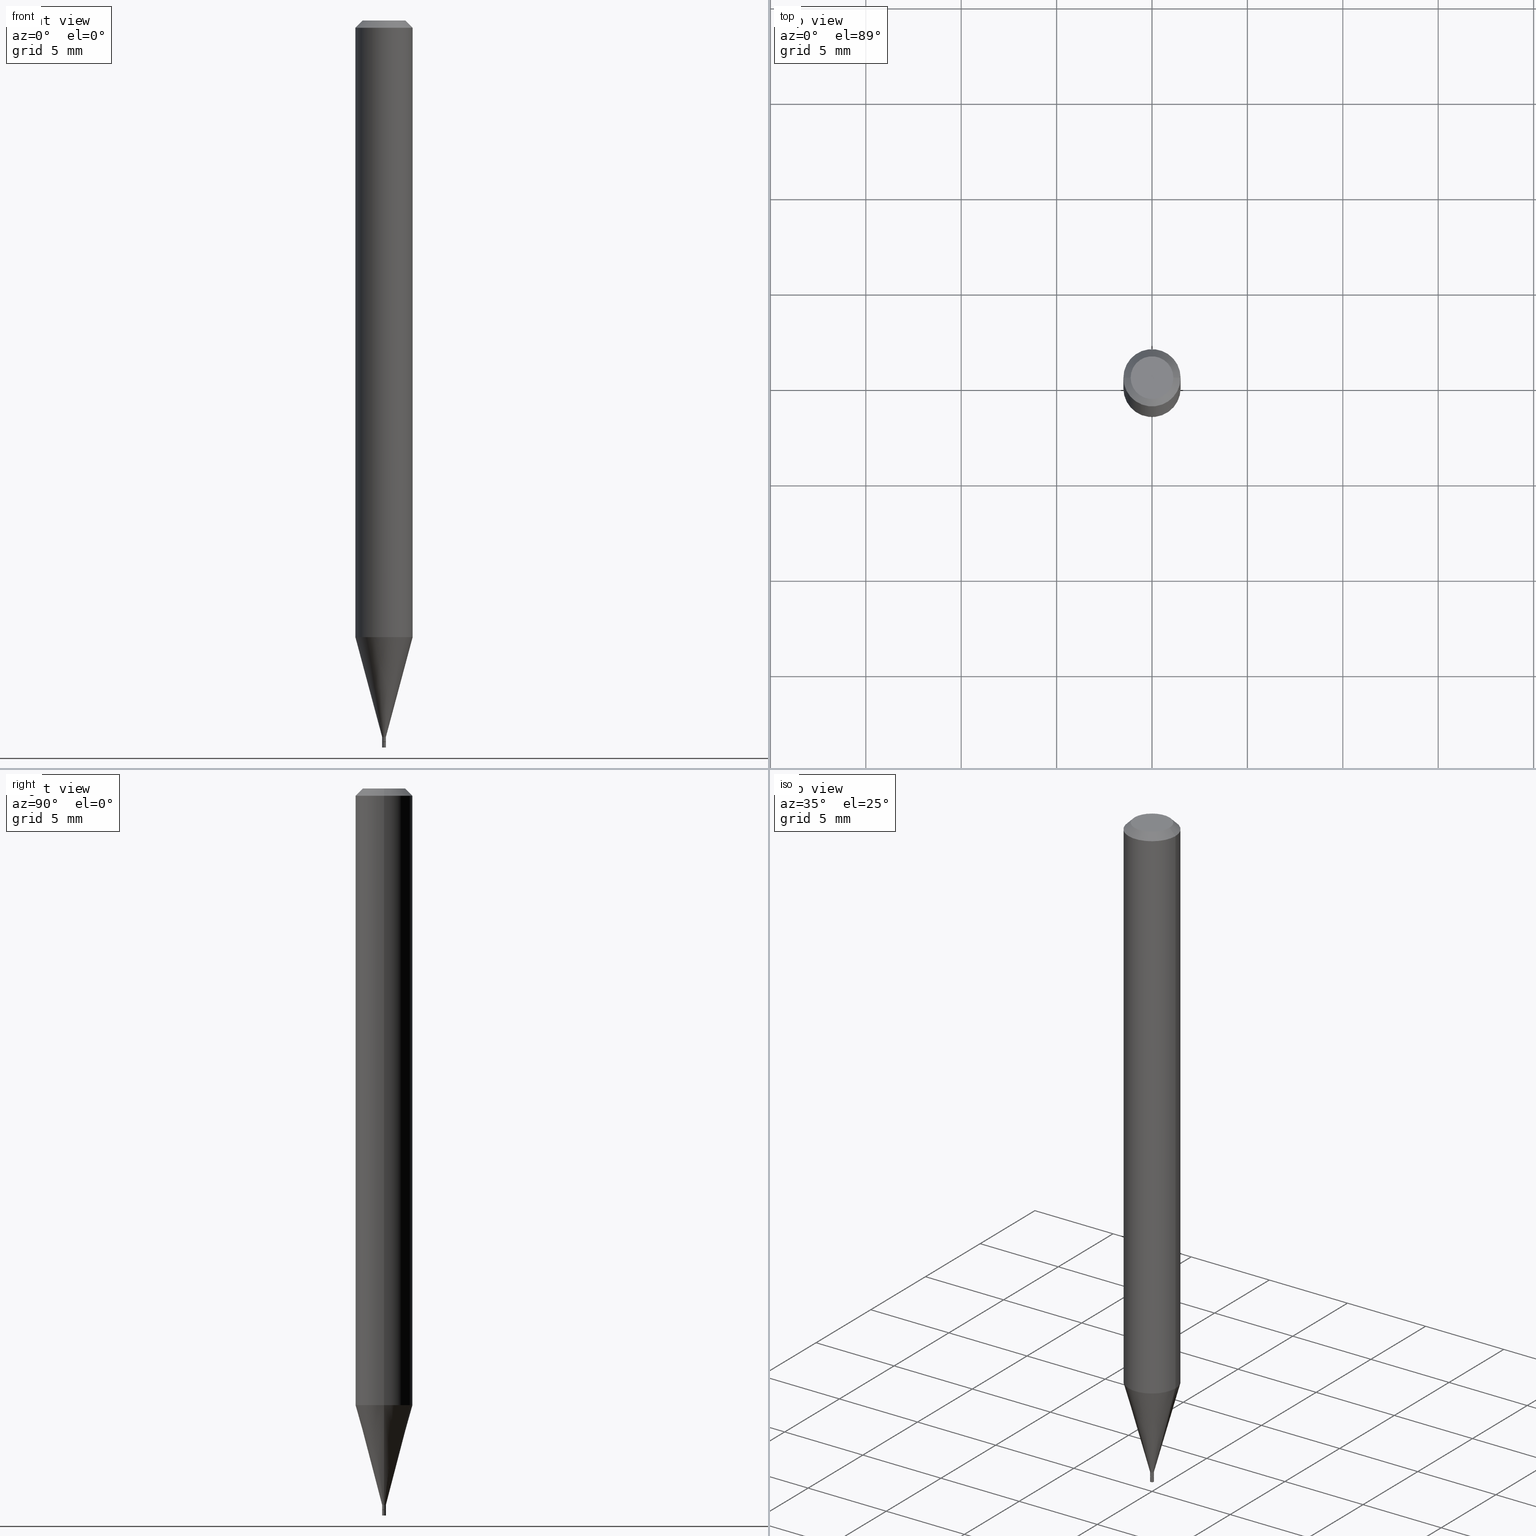
[diagram: canonical four-view strip — front | top / right | iso, engineering-drawing reading convention]
A machine part, canonical four-view strip (front | top / right | iso — engineering-drawing reading convention). The complete STEP part file that produces these views, byte-faithful:
ISO-10303-21;
HEADER;
FILE_DESCRIPTION (( 'STEP AP203' ),
    '1' );
FILE_NAME ('02801.STEP',
    '2024-03-18T21:39:24',
    ( '' ),
    ( '' ),
    'SwSTEP 2.0',
    'SolidWorks 2023',
    '' );
FILE_SCHEMA (( 'CONFIG_CONTROL_DESIGN' ));
ENDSEC;

DATA;
#1 = ORIENTED_EDGE ( 'NONE', *, *, #172, .F. ) ;
#2 = CARTESIAN_POINT ( 'NONE',  ( 3.639346677364720273E-29, -5.196022528466369115E-15, -1.488199999999999967 ) ) ;
#3 = EDGE_CURVE ( 'NONE', #75, #7, #95, .T. ) ;
#4 = ORIENTED_EDGE ( 'NONE', *, *, #378, .F. ) ;
#5 = DIRECTION ( 'NONE',  ( 1.000000000000000000, -6.982962677686375573E-15, 0.000000000000000000 ) ) ;
#6 = LOCAL_TIME ( 17, 39, 24.00000000000000000, #386 ) ;
#7 = VERTEX_POINT ( 'NONE', #382 ) ;
#8 = CARTESIAN_POINT ( 'NONE',  ( 2.758270257689715332E-17, 0.003949999999994805756, -1.488199999999999967 ) ) ;
#9 =( CONVERSION_BASED_UNIT ( 'INCH', #265 ) LENGTH_UNIT ( ) NAMED_UNIT ( #381 ) );
#10 = CALENDAR_DATE ( 2024, 18, 3 ) ;
#11 = CC_DESIGN_DATE_AND_TIME_ASSIGNMENT ( #424, #416, ( #296 ) ) ;
#12 = ORIENTED_EDGE ( 'NONE', *, *, #421, .T. ) ;
#13 =( NAMED_UNIT ( * ) SI_UNIT ( $, .STERADIAN. ) SOLID_ANGLE_UNIT ( ) );
#14 = SECURITY_CLASSIFICATION ( '', '', #310 ) ;
#15 = ORIENTED_EDGE ( 'NONE', *, *, #456, .F. ) ;
#16 = DIRECTION ( 'NONE',  ( 1.000000000000000000, -6.982962677686268288E-15, 4.876176775795935793E-29 ) ) ;
#17 = EDGE_LOOP ( 'NONE', ( #404, #184, #116, #374 ) ) ;
#18 = CARTESIAN_POINT ( 'NONE',  ( 3.639346677364720273E-29, -5.196022528466369115E-15, -1.488199999999999967 ) ) ;
#19 = ORIENTED_EDGE ( 'NONE', *, *, #459, .T. ) ;
#20 = DIRECTION ( 'NONE',  ( 1.000000000000000000, -6.982962677686375573E-15, 0.000000000000000000 ) ) ;
#21 = CLOSED_SHELL ( 'NONE', ( #430, #347, #360, #329, #181, #303, #117, #107, #452, #60, #241, #28 ) ) ;
#22 = AXIS2_PLACEMENT_3D ( 'NONE', #8, #41, #115 ) ;
#23 = ORIENTED_EDGE ( 'NONE', *, *, #250, .F. ) ;
#24 = ORIENTED_EDGE ( 'NONE', *, *, #459, .F. ) ;
#25 = DIRECTION ( 'NONE',  ( -2.445468806185136597E-29, 3.491481338843145583E-15, 1.000000000000000000 ) ) ;
#26 = MANIFOLD_SOLID_BREP ( 'Body-Move/Copy2[1]', #396 ) ;
#27 = CARTESIAN_POINT ( 'NONE',  ( 3.576687321579069994E-29, -5.368277968210015545E-15, -1.500000000000000222 ) ) ;
#28 = ADVANCED_FACE ( 'NONE', ( #29 ), #254, .T. ) ;
#29 = FACE_OUTER_BOUND ( 'NONE', #122, .T. ) ;
#30 = AXIS2_PLACEMENT_3D ( 'NONE', #443, #440, #5 ) ;
#31 = DIRECTION ( 'NONE',  ( 1.000000000000000000, -6.982962677686265922E-15, 4.876176775795935793E-29 ) ) ;
#32 = CARTESIAN_POINT ( 'NONE',  ( 3.614402895541632280E-29, -5.160409418810169653E-15, -1.478000000000000203 ) ) ;
#33 = VECTOR ( 'NONE', #435, 39.37007874015748854 ) ;
#34 = LINE ( 'NONE', #354, #114 ) ;
#35 =( GEOMETRIC_REPRESENTATION_CONTEXT ( 3 ) GLOBAL_UNCERTAINTY_ASSIGNED_CONTEXT ( ( #135 ) ) GLOBAL_UNIT_ASSIGNED_CONTEXT ( ( #9, #77, #13 ) ) REPRESENTATION_CONTEXT ( 'NONE', 'WORKASPACE' ) );
#36 = CARTESIAN_POINT ( 'NONE',  ( -0.003950000000000001253, -5.188555830303019624E-15, -1.488199999999999967 ) ) ;
#37 = EDGE_CURVE ( 'NONE', #272, #271, #247, .T. ) ;
#38 = ORIENTED_EDGE ( 'NONE', *, *, #456, .T. ) ;
#39 = ORIENTED_EDGE ( 'NONE', *, *, #185, .F. ) ;
#40 = CONICAL_SURFACE ( 'NONE', #446, 0.003449999999999999942, 0.7853981633974733700 ) ;
#41 = DIRECTION ( 'NONE',  ( 2.438088387897960049E-29, -3.491481338843145188E-15, -1.000000000000000000 ) ) ;
#42 = APPROVAL_ROLE ( '' ) ;
#43 = CYLINDRICAL_SURFACE ( 'NONE', #183, 0.003950000000000001253 ) ;
#44 = DIRECTION ( 'NONE',  ( -0.7071067811865652253, 7.493145998870417269E-15, 0.7071067811865298092 ) ) ;
#45 = LINE ( 'NONE', #98, #127 ) ;
#46 = CIRCLE ( 'NONE', #61, 0.003950000000000001253 ) ;
#47 = CARTESIAN_POINT ( 'NONE',  ( 0.003949999999999924925, -5.187992121387030198E-15, -1.478000000000000203 ) ) ;
#48 = EDGE_LOOP ( 'NONE', ( #81, #364 ) ) ;
#49 = LINE ( 'NONE', #240, #388 ) ;
#50 = DIRECTION ( 'NONE',  ( 2.438088387897960049E-29, -3.491481338843145188E-15, -1.000000000000000000 ) ) ;
#51 = EDGE_LOOP ( 'NONE', ( #400, #264, #438, #23 ) ) ;
#52 = CARTESIAN_POINT ( 'NONE',  ( -0.003949999999999924058, -5.166210349734423589E-15, -1.487700000000000022 ) ) ;
#53 = ORIENTED_EDGE ( 'NONE', *, *, #427, .T. ) ;
#54 = CARTESIAN_POINT ( 'NONE',  ( -0.05904999999999999832, -4.022859678505539415E-15, -1.272364000502955284 ) ) ;
#55 = AXIS2_PLACEMENT_3D ( 'NONE', #105, #359, #102 ) ;
#56 = EDGE_CURVE ( 'NONE', #90, #259, #106, .T. ) ;
#57 = CC_DESIGN_PERSON_AND_ORGANIZATION_ASSIGNMENT ( #369, #244, ( #296 ) ) ;
#58 = FACE_OUTER_BOUND ( 'NONE', #48, .T. ) ;
#59 = DIRECTION ( 'NONE',  ( -2.445468806185136597E-29, 3.491481338843145583E-15, 1.000000000000000000 ) ) ;
#60 = ADVANCED_FACE ( 'NONE', ( #58 ), #352, .F. ) ;
#61 = AXIS2_PLACEMENT_3D ( 'NONE', #379, #198, #93 ) ;
#62 = DIRECTION ( 'NONE',  ( -2.445468806185136597E-29, 3.491481338843145583E-15, 1.000000000000000000 ) ) ;
#63 = DIRECTION ( 'NONE',  ( -2.445468806185136597E-29, 3.491481338843145583E-15, 1.000000000000000000 ) ) ;
#64 = DATE_AND_TIME ( #101, #197 ) ;
#65 = CARTESIAN_POINT ( 'NONE',  ( 3.111526473342906720E-29, -4.442435163971879697E-15, -1.272364000502955284 ) ) ;
#66 = CARTESIAN_POINT ( 'NONE',  ( 0.000000000000000000, 0.000000000000000000, 0.000000000000000000 ) ) ;
#67 = CONICAL_SURFACE ( 'NONE', #398, 0.05904999999999999832, 0.7853981633974284060 ) ;
#68 = EDGE_CURVE ( 'NONE', #220, #90, #226, .T. ) ;
#69 = DIRECTION ( 'NONE',  ( 1.000000000000000000, -6.982962677686266711E-15, 4.876176775795935232E-29 ) ) ;
#70 = PRODUCT_DEFINITION_SHAPE ( 'NONE', 'NONE',  #296 ) ;
#71 = VERTEX_POINT ( 'NONE', #283 ) ;
#72 = VECTOR ( 'NONE', #108, 39.37007874015748854 ) ;
#73 = CARTESIAN_POINT ( 'NONE',  ( 0.000000000000000000, 0.000000000000000000, 0.000000000000000000 ) ) ;
#74 = AXIS2_PLACEMENT_3D ( 'NONE', #2, #147, #301 ) ;
#75 = VERTEX_POINT ( 'NONE', #318 ) ;
#76 = FACE_OUTER_BOUND ( 'NONE', #79, .T. ) ;
#77 =( NAMED_UNIT ( * ) PLANE_ANGLE_UNIT ( ) SI_UNIT ( $, .RADIAN. ) );
#78 = APPROVAL_DATE_TIME ( #144, #405 ) ;
#79 = EDGE_LOOP ( 'NONE', ( #24, #233, #193, #348 ) ) ;
#80 = EDGE_LOOP ( 'NONE', ( #343, #297, #137, #227 ) ) ;
#81 = ORIENTED_EDGE ( 'NONE', *, *, #83, .F. ) ;
#82 = CARTESIAN_POINT ( 'NONE',  ( 0.003949999999999924058, -5.221859490373808156E-15, -1.487700000000000022 ) ) ;
#83 = EDGE_CURVE ( 'NONE', #182, #300, #157, .T. ) ;
#84 = DIRECTION ( 'NONE',  ( 1.000000000000000000, -6.982962677686379518E-15, 0.000000000000000000 ) ) ;
#85 = DIRECTION ( 'NONE',  ( 1.000000000000000000, 0.000000000000000000, 0.000000000000000000 ) ) ;
#86 = ORIENTED_EDGE ( 'NONE', *, *, #129, .T. ) ;
#87 = CARTESIAN_POINT ( 'NONE',  ( -0.003950000000000001253, 2.806643806252396625E-17, -1.942979360650688713E-31 ) ) ;
#88 = DIRECTION ( 'NONE',  ( 0.000000000000000000, 0.000000000000000000, 1.000000000000000000 ) ) ;
#89 = ORIENTED_EDGE ( 'NONE', *, *, #56, .F. ) ;
#90 = VERTEX_POINT ( 'NONE', #457 ) ;
#91 = PERSON_AND_ORGANIZATION ( #266, #165 ) ;
#92 = DATE_TIME_ROLE ( 'classification_date' ) ;
#93 = DIRECTION ( 'NONE',  ( 1.000000000000000000, -6.982962677686244622E-15, 0.000000000000000000 ) ) ;
#94 = APPROVAL ( #453, 'UNSPECIFIED' ) ;
#95 = CIRCLE ( 'NONE', #319, 0.003950000000000001253 ) ;
#96 = AXIS2_PLACEMENT_3D ( 'NONE', #143, #224, #331 ) ;
#97 = APPROVAL_DATE_TIME ( #211, #94 ) ;
#98 = CARTESIAN_POINT ( 'NONE',  ( 0.003949999999999924925, -2.758270257686022785E-17, 1.926089826439357875E-31 ) ) ;
#99 = PERSON_AND_ORGANIZATION ( #266, #165 ) ;
#100 = DIRECTION ( 'NONE',  ( 1.000000000000000000, -6.982962677686379518E-15, 0.000000000000000000 ) ) ;
#101 = CALENDAR_DATE ( 2024, 18, 3 ) ;
#102 = DIRECTION ( 'NONE',  ( 1.000000000000000000, -6.982962677686381095E-15, 0.000000000000000000 ) ) ;
#103 = CARTESIAN_POINT ( 'NONE',  ( -0.003949999999999924925, -5.132342980747646420E-15, -1.478000000000000203 ) ) ;
#104 = VECTOR ( 'NONE', #410, 39.37007874015748143 ) ;
#105 = CARTESIAN_POINT ( 'NONE',  ( 3.638123942961628033E-29, -5.194276787796947611E-15, -1.487700000000000022 ) ) ;
#106 = LINE ( 'NONE', #134, #72 ) ;
#107 = ADVANCED_FACE ( 'NONE', ( #458 ), #342, .T. ) ;
#108 = DIRECTION ( 'NONE',  ( 0.7071067811865333619, -7.319954787623207136E-15, -0.7071067811865614505 ) ) ;
#109 = AXIS2_PLACEMENT_3D ( 'NONE', #32, #203, #100 ) ;
#110 = EDGE_CURVE ( 'NONE', #71, #436, #174, .T. ) ;
#111 = ORIENTED_EDGE ( 'NONE', *, *, #56, .T. ) ;
#112 = CARTESIAN_POINT ( 'NONE',  ( -0.05904999999999999832, 3.599717260347268549E-16, -0.01499999999999999944 ) ) ;
#113 = ORIENTED_EDGE ( 'NONE', *, *, #290, .F. ) ;
#114 = VECTOR ( 'NONE', #321, 39.37007874015748143 ) ;
#115 = DIRECTION ( 'NONE',  ( -1.000000000000000000, 6.982962677686265922E-15, -4.876176775795935793E-29 ) ) ;
#116 = ORIENTED_EDGE ( 'NONE', *, *, #403, .F. ) ;
#117 = ADVANCED_FACE ( 'NONE', ( #128 ), #351, .T. ) ;
#118 = ORIENTED_EDGE ( 'NONE', *, *, #204, .F. ) ;
#119 = FACE_OUTER_BOUND ( 'NONE', #222, .T. ) ;
#120 = CC_DESIGN_PERSON_AND_ORGANIZATION_ASSIGNMENT ( #450, #314, ( #417 ) ) ;
#121 = AXIS2_PLACEMENT_3D ( 'NONE', #345, #25, #418 ) ;
#122 = EDGE_LOOP ( 'NONE', ( #39, #399, #125, #189 ) ) ;
#123 = EDGE_LOOP ( 'NONE', ( #366, #19, #216, #141 ) ) ;
#124 = LINE ( 'NONE', #311, #344 ) ;
#125 = ORIENTED_EDGE ( 'NONE', *, *, #336, .T. ) ;
#126 = CARTESIAN_POINT ( 'NONE',  ( 3.668203209277704895E-29, -5.237222008264718177E-15, -1.500000000000000222 ) ) ;
#127 = VECTOR ( 'NONE', #341, 39.37007874015748143 ) ;
#128 = FACE_OUTER_BOUND ( 'NONE', #218, .T. ) ;
#129 = EDGE_CURVE ( 'NONE', #272, #259, #431, .T. ) ;
#130 = PERSON_AND_ORGANIZATION_ROLE ( 'design_supplier' ) ;
#131 = DIRECTION ( 'NONE',  ( 1.000000000000000000, -6.982962677686244622E-15, 0.000000000000000000 ) ) ;
#132 = AXIS2_PLACEMENT_3D ( 'NONE', #394, #425, #282 ) ;
#133 = CONICAL_SURFACE ( 'NONE', #401, 0.003949999999999924925, 0.2617993877991500740 ) ;
#134 = CARTESIAN_POINT ( 'NONE',  ( 0.05904999999999999832, -4.574846268510561447E-16, -0.01499999999999999944 ) ) ;
#135 = UNCERTAINTY_MEASURE_WITH_UNIT (LENGTH_MEASURE( 1.000000000000000082E-05 ), #9, 'distance_accuracy_value', 'NONE');
#136 = CARTESIAN_POINT ( 'NONE',  ( 0.05904999999999999832, -4.123439461173740327E-16, 2.879382386107500220E-30 ) ) ;
#137 = ORIENTED_EDGE ( 'NONE', *, *, #427, .F. ) ;
#138 = DIRECTION ( 'NONE',  ( -2.445468806185136597E-29, 3.491481338843145583E-15, 1.000000000000000000 ) ) ;
#139 = CIRCLE ( 'NONE', #263, 0.05904999999999999832 ) ;
#140 = FACE_OUTER_BOUND ( 'NONE', #295, .T. ) ;
#141 = ORIENTED_EDGE ( 'NONE', *, *, #346, .F. ) ;
#142 = APPLICATION_CONTEXT ( 'configuration controlled 3d designs of mechanical parts and assemblies' ) ;
#143 = CARTESIAN_POINT ( 'NONE',  ( -1.468669197094138970E-44, 2.096870375781732313E-30, 6.005675449139022051E-16 ) ) ;
#144 = DATE_AND_TIME ( #10, #228 ) ;
#145 = ORIENTED_EDGE ( 'NONE', *, *, #323, .F. ) ;
#146 = AXIS2_PLACEMENT_3D ( 'NONE', #73, #88, #85 ) ;
#147 = DIRECTION ( 'NONE',  ( -2.445468806185136597E-29, 3.491481338843145583E-15, 1.000000000000000000 ) ) ;
#148 = ADVANCED_FACE ( 'NONE', ( #281 ), #422, .T. ) ;
#149 = DIRECTION ( 'NONE',  ( 1.000000000000000000, -6.982962677686381095E-15, 0.000000000000000000 ) ) ;
#150 = DIRECTION ( 'NONE',  ( 1.000000000000000000, -6.982962677686244622E-15, 0.000000000000000000 ) ) ;
#151 = DIRECTION ( 'NONE',  ( 1.000000000000000000, -6.982962677686266711E-15, 0.000000000000000000 ) ) ;
#152 = ORIENTED_EDGE ( 'NONE', *, *, #338, .F. ) ;
#153 =( LENGTH_UNIT ( ) NAMED_UNIT ( * ) SI_UNIT ( $, .METRE. ) );
#154 = PERSON_AND_ORGANIZATION_ROLE ( 'classification_officer' ) ;
#155 = EDGE_LOOP ( 'NONE', ( #15, #111, #53, #118 ) ) ;
#156 = CARTESIAN_POINT ( 'NONE',  ( -0.003449999999999999942, -5.168859576908534791E-15, -1.488199999999999967 ) ) ;
#157 = CIRCLE ( 'NONE', #238, 0.003449999999999999942 ) ;
#158 = PERSON_AND_ORGANIZATION ( #266, #165 ) ;
#159 = ORIENTED_EDGE ( 'NONE', *, *, #384, .T. ) ;
#160 = DIRECTION ( 'NONE',  ( -2.445468806185136597E-29, 3.491481338843145583E-15, 1.000000000000000000 ) ) ;
#161 = APPROVAL_ROLE ( '' ) ;
#162 = PLANE ( 'NONE',  #292 ) ;
#163 = DIRECTION ( 'NONE',  ( -2.445468806185136597E-29, 3.491481338843145583E-15, 1.000000000000000000 ) ) ;
#164 = CIRCLE ( 'NONE', #30, 0.003449999999999999942 ) ;
#165 = ORGANIZATION ( 'UNSPECIFIED', 'UNSPECIFIED', '' ) ;
#166 = VECTOR ( 'NONE', #269, 39.37007874015747433 ) ;
#167 = EDGE_CURVE ( 'NONE', #304, #324, #461, .T. ) ;
#168 = CARTESIAN_POINT ( 'NONE',  ( -1.468669197094138970E-44, 2.096870375781732313E-30, 6.005675449139022051E-16 ) ) ;
#169 = APPROVAL ( #460, 'UNSPECIFIED' ) ;
#170 = CARTESIAN_POINT ( 'NONE',  ( 0.003449999999999999942, -5.220113749704386653E-15, -1.488199999999999967 ) ) ;
#171 = DIRECTION ( 'NONE',  ( 1.000000000000000000, -6.982962677686273021E-15, 0.000000000000000000 ) ) ;
#172 = EDGE_CURVE ( 'NONE', #7, #71, #34, .T. ) ;
#173 = CC_DESIGN_SECURITY_CLASSIFICATION ( #14, ( #417 ) ) ;
#174 = CIRCLE ( 'NONE', #190, 0.003950000000000001253 ) ;
#175 = MANIFOLD_SOLID_BREP ( 'Body-Move/Copy2[2]', #21 ) ;
#176 = CC_DESIGN_PERSON_AND_ORGANIZATION_ASSIGNMENT ( #91, #267, ( #294 ) ) ;
#177 = CIRCLE ( 'NONE', #441, 0.003950000000000001253 ) ;
#178 = DIRECTION ( 'NONE',  ( -2.445468806185136597E-29, 3.491481338843145583E-15, 1.000000000000000000 ) ) ;
#179 = DIRECTION ( 'NONE',  ( 1.000000000000000000, -6.982962677686266711E-15, 0.000000000000000000 ) ) ;
#180 = ORIENTED_EDGE ( 'NONE', *, *, #110, .T. ) ;
#181 = ADVANCED_FACE ( 'NONE', ( #255 ), #298, .T. ) ;
#182 = VERTEX_POINT ( 'NONE', #170 ) ;
#183 = AXIS2_PLACEMENT_3D ( 'NONE', #325, #138, #16 ) ;
#184 = ORIENTED_EDGE ( 'NONE', *, *, #185, .T. ) ;
#185 = EDGE_CURVE ( 'NONE', #324, #406, #391, .T. ) ;
#186 = APPLICATION_PROTOCOL_DEFINITION ( 'international standard', 'config_control_design', 1994, #368 ) ;
#187 = CC_DESIGN_PERSON_AND_ORGANIZATION_ASSIGNMENT ( #289, #154, ( #14 ) ) ;
#188 = ORIENTED_EDGE ( 'NONE', *, *, #323, .T. ) ;
#189 = ORIENTED_EDGE ( 'NONE', *, *, #421, .F. ) ;
#190 = AXIS2_PLACEMENT_3D ( 'NONE', #312, #246, #455 ) ;
#191 = AXIS2_PLACEMENT_3D ( 'NONE', #231, #451, #392 ) ;
#192 = DIRECTION ( 'NONE',  ( 0.7071067811865652253, -2.468850131082442443E-15, 0.7071067811865298092 ) ) ;
#193 = ORIENTED_EDGE ( 'NONE', *, *, #346, .T. ) ;
#194 = DIRECTION ( 'NONE',  ( -2.445468806185136597E-29, 3.491481338843145583E-15, 1.000000000000000000 ) ) ;
#195 = DIRECTION ( 'NONE',  ( -2.445468806185136597E-29, 3.491481338843145583E-15, 1.000000000000000000 ) ) ;
#196 = APPLICATION_PROTOCOL_DEFINITION ( 'international standard', 'config_control_design', 1994, #142 ) ;
#197 = LOCAL_TIME ( 17, 39, 24.00000000000000000, #251 ) ;
#198 = DIRECTION ( 'NONE',  ( -2.445468806185136597E-29, 3.491481338843145583E-15, 1.000000000000000000 ) ) ;
#199 = AXIS2_PLACEMENT_3D ( 'NONE', #213, #178, #252 ) ;
#200 = CIRCLE ( 'NONE', #249, 0.05904999999999999832 ) ;
#201 = CALENDAR_DATE ( 2024, 18, 3 ) ;
#202 = DIRECTION ( 'NONE',  ( -2.445468806185136597E-29, 3.491481338843145583E-15, 1.000000000000000000 ) ) ;
#203 = DIRECTION ( 'NONE',  ( -2.445468806185136597E-29, 3.491481338843145583E-15, 1.000000000000000000 ) ) ;
#204 = EDGE_CURVE ( 'NONE', #220, #448, #212, .T. ) ;
#205 = DATE_AND_TIME ( #201, #217 ) ;
#206 = EDGE_CURVE ( 'NONE', #300, #182, #164, .T. ) ;
#207 = DIRECTION ( 'NONE',  ( 1.000000000000000000, -6.982962677686266711E-15, 4.876176775795935232E-29 ) ) ;
#208 = CC_DESIGN_APPROVAL ( #405, ( #296 ) ) ;
#209 = PERSON_AND_ORGANIZATION ( #266, #165 ) ;
#210 = DIRECTION ( 'NONE',  ( 1.000000000000000000, -6.982962677686268288E-15, 4.876176775795935793E-29 ) ) ;
#211 = DATE_AND_TIME ( #356, #6 ) ;
#212 = LINE ( 'NONE', #112, #33 ) ;
#213 = CARTESIAN_POINT ( 'NONE',  ( 0.000000000000000000, 0.000000000000000000, 0.000000000000000000 ) ) ;
#214 = CC_DESIGN_APPROVAL ( #169, ( #417 ) ) ;
#215 = ADVANCED_FACE ( 'NONE', ( #140 ), #293, .F. ) ;
#216 = ORIENTED_EDGE ( 'NONE', *, *, #167, .F. ) ;
#217 = LOCAL_TIME ( 17, 39, 24.00000000000000000, #390 ) ;
#218 = EDGE_LOOP ( 'NONE', ( #113, #159, #86, #4 ) ) ;
#219 = DIRECTION ( 'NONE',  ( -2.445468806185136597E-29, 3.491481338843145583E-15, 1.000000000000000000 ) ) ;
#220 = VERTEX_POINT ( 'NONE', #402 ) ;
#221 = DIRECTION ( 'NONE',  ( 0.2588190451025213501, 1.565188264969621968E-15, 0.9659258262890682012 ) ) ;
#222 = EDGE_LOOP ( 'NONE', ( #412, #12, #234, #447 ) ) ;
#223 = CARTESIAN_POINT ( 'NONE',  ( 0.003949999999999924925, -5.187992121387030198E-15, -1.478000000000000203 ) ) ;
#224 = DIRECTION ( 'NONE',  ( -2.445468806185136597E-29, 3.491481338843145583E-15, 1.000000000000000000 ) ) ;
#225 = DIRECTION ( 'NONE',  ( -2.445468806185136597E-29, 3.491481338843145583E-15, 1.000000000000000000 ) ) ;
#226 = CIRCLE ( 'NONE', #433, 0.04404999999999999888 ) ;
#227 = ORIENTED_EDGE ( 'NONE', *, *, #129, .F. ) ;
#228 = LOCAL_TIME ( 17, 39, 24.00000000000000000, #333 ) ;
#229 = FACE_OUTER_BOUND ( 'NONE', #80, .T. ) ;
#230 = CARTESIAN_POINT ( 'NONE',  ( 3.075995059520799729E-16, 0.04404999999999999888, 1.464840194809105491E-16 ) ) ;
#231 = CARTESIAN_POINT ( 'NONE',  ( 3.614402895541632280E-29, -5.160409418810169653E-15, -1.478000000000000203 ) ) ;
#232 = ORIENTED_EDGE ( 'NONE', *, *, #338, .T. ) ;
#233 = ORIENTED_EDGE ( 'NONE', *, *, #206, .T. ) ;
#234 = ORIENTED_EDGE ( 'NONE', *, *, #250, .T. ) ;
#235 = CARTESIAN_POINT ( 'NONE',  ( 3.638123942961628033E-29, -5.194276787796947611E-15, -1.487700000000000022 ) ) ;
#236 = MECHANICAL_CONTEXT ( 'NONE', #368, 'mechanical' ) ;
#237 = PERSON_AND_ORGANIZATION ( #266, #165 ) ;
#238 = AXIS2_PLACEMENT_3D ( 'NONE', #287, #315, #285 ) ;
#239 = CIRCLE ( 'NONE', #96, 0.04404999999999999888 ) ;
#240 = CARTESIAN_POINT ( 'NONE',  ( 0.003449999999999999942, -5.220113749704386653E-15, -1.488199999999999967 ) ) ;
#241 = ADVANCED_FACE ( 'NONE', ( #76 ), #284, .T. ) ;
#242 = CARTESIAN_POINT ( 'NONE',  ( -0.003949999999999924925, 2.806643806252342390E-17, -1.942979360650650615E-31 ) ) ;
#243 = CARTESIAN_POINT ( 'NONE',  ( 3.668203209277705088E-31, -5.237222008264718399E-17, -0.01499999999999999944 ) ) ;
#244 = PERSON_AND_ORGANIZATION_ROLE ( 'creator' ) ;
#245 = APPROVAL_ROLE ( '' ) ;
#246 = DIRECTION ( 'NONE',  ( -2.445468806185136597E-29, 3.491481338843145583E-15, 1.000000000000000000 ) ) ;
#247 = CIRCLE ( 'NONE', #363, 0.05904999999999999832 ) ;
#248 = DIRECTION ( 'NONE',  ( -2.445468806185136597E-29, 3.491481338843145583E-15, 1.000000000000000000 ) ) ;
#249 = AXIS2_PLACEMENT_3D ( 'NONE', #243, #225, #151 ) ;
#250 = EDGE_CURVE ( 'NONE', #376, #272, #268, .T. ) ;
#251 = COORDINATED_UNIVERSAL_TIME_OFFSET ( 5, 0, .BEHIND. ) ;
#252 = DIRECTION ( 'NONE',  ( 1.000000000000000000, -6.982962677686266711E-15, 4.876176775795936353E-29 ) ) ;
#253 = ADVANCED_FACE ( 'NONE', ( #367 ), #43, .T. ) ;
#254 = CYLINDRICAL_SURFACE ( 'NONE', #445, 0.003949999999999924925 ) ;
#255 = FACE_OUTER_BOUND ( 'NONE', #51, .T. ) ;
#256 = APPROVAL_PERSON_ORGANIZATION ( #237, #94, #245 ) ;
#257 = VECTOR ( 'NONE', #429, 39.37007874015748143 ) ;
#258 = AXIS2_PLACEMENT_3D ( 'NONE', #466, #397, #69 ) ;
#259 = VERTEX_POINT ( 'NONE', #339 ) ;
#260 = EDGE_CURVE ( 'NONE', #324, #304, #273, .T. ) ;
#261 = CARTESIAN_POINT ( 'NONE',  ( -0.05904999999999999832, -1.827828206560924092E-15, -0.01499999999999999944 ) ) ;
#262 = AXIS2_PLACEMENT_3D ( 'NONE', #462, #387, #210 ) ;
#263 = AXIS2_PLACEMENT_3D ( 'NONE', #286, #358, #179 ) ;
#264 = ORIENTED_EDGE ( 'NONE', *, *, #371, .T. ) ;
#265 = LENGTH_MEASURE_WITH_UNIT ( LENGTH_MEASURE( 0.02539999999999999897 ), #153 );
#266 = PERSON ( 'UNSPECIFIED', 'UNSPECIFIED', 'UNSPECIFIED', ('UNSPECIFIED'), ('UNSPECIFIED'), ('UNSPECIFIED') ) ;
#267 = PERSON_AND_ORGANIZATION_ROLE ( 'design_owner' ) ;
#268 = LINE ( 'NONE', #223, #328 ) ;
#269 = DIRECTION ( 'NONE',  ( -0.2588190451025213501, 5.211531920934551042E-15, 0.9659258262890682012 ) ) ;
#270 = ORIENTED_EDGE ( 'NONE', *, *, #204, .T. ) ;
#271 = VERTEX_POINT ( 'NONE', #54 ) ;
#272 = VERTEX_POINT ( 'NONE', #444 ) ;
#273 = CIRCLE ( 'NONE', #320, 0.003949999999999924058 ) ;
#274 = FACE_OUTER_BOUND ( 'NONE', #327, .T. ) ;
#275 = PLANE ( 'NONE',  #408 ) ;
#276 = EDGE_LOOP ( 'NONE', ( #414, #232, #409, #1 ) ) ;
#277 = DIRECTION ( 'NONE',  ( -2.445468806185136877E-29, 3.491481338843145188E-15, 1.000000000000000000 ) ) ;
#278 = ADVANCED_FACE ( 'NONE', ( #274 ), #162, .F. ) ;
#279 = DIRECTION ( 'NONE',  ( 1.000000000000000000, -6.982962677686379518E-15, 0.000000000000000000 ) ) ;
#280 = CIRCLE ( 'NONE', #191, 0.003949999999999924925 ) ;
#281 = FACE_OUTER_BOUND ( 'NONE', #276, .T. ) ;
#282 = DIRECTION ( 'NONE',  ( -1.000000000000000000, 6.982962677686266711E-15, 0.000000000000000000 ) ) ;
#283 = CARTESIAN_POINT ( 'NONE',  ( 0.003950000000000001253, -5.223605231043229660E-15, -1.488199999999999967 ) ) ;
#284 = CONICAL_SURFACE ( 'NONE', #74, 0.003449999999999999942, 0.7853981633974733700 ) ;
#285 = DIRECTION ( 'NONE',  ( 1.000000000000000000, -6.982962677686375573E-15, 0.000000000000000000 ) ) ;
#286 = CARTESIAN_POINT ( 'NONE',  ( 3.668203209277705088E-31, -5.237222008264718399E-17, -0.01499999999999999944 ) ) ;
#287 = CARTESIAN_POINT ( 'NONE',  ( 3.639346677364720273E-29, -5.196022528466369115E-15, -1.488199999999999967 ) ) ;
#288 = DESIGN_CONTEXT ( 'detailed design', #142, 'design' ) ;
#289 = PERSON_AND_ORGANIZATION ( #266, #165 ) ;
#290 = EDGE_CURVE ( 'NONE', #271, #448, #124, .T. ) ;
#291 = ORIENTED_EDGE ( 'NONE', *, *, #3, .T. ) ;
#292 = AXIS2_PLACEMENT_3D ( 'NONE', #27, #349, #377 ) ;
#293 = PLANE ( 'NONE',  #22 ) ;
#294 = PRODUCT ( '02801', '02801', '', ( #236 ) ) ;
#295 = EDGE_LOOP ( 'NONE', ( #180, #188 ) ) ;
#296 = PRODUCT_DEFINITION ( 'UNKNOWN', '', #417, #288 ) ;
#297 = ORIENTED_EDGE ( 'NONE', *, *, #290, .T. ) ;
#298 = CONICAL_SURFACE ( 'NONE', #109, 0.003949999999999924925, 0.2617993877991500740 ) ;
#299 = LOCAL_TIME ( 17, 39, 24.00000000000000000, #350 ) ;
#300 = VERTEX_POINT ( 'NONE', #156 ) ;
#301 = DIRECTION ( 'NONE',  ( 1.000000000000000000, -6.982962677686375573E-15, 0.000000000000000000 ) ) ;
#302 = ORIENTED_EDGE ( 'NONE', *, *, #378, .T. ) ;
#303 = ADVANCED_FACE ( 'NONE', ( #119 ), #133, .T. ) ;
#304 = VERTEX_POINT ( 'NONE', #82 ) ;
#305 = FACE_OUTER_BOUND ( 'NONE', #123, .T. ) ;
#306 = CIRCLE ( 'NONE', #361, 0.003949999999999924925 ) ;
#307 = CYLINDRICAL_SURFACE ( 'NONE', #121, 0.05904999999999999832 ) ;
#308 = ORIENTED_EDGE ( 'NONE', *, *, #68, .T. ) ;
#309 = FACE_OUTER_BOUND ( 'NONE', #155, .T. ) ;
#310 = SECURITY_CLASSIFICATION_LEVEL ( 'unclassified' ) ;
#311 = CARTESIAN_POINT ( 'NONE',  ( -0.05904999999999999832, 4.195754854663391478E-16, -2.904631170795521892E-30 ) ) ;
#312 = CARTESIAN_POINT ( 'NONE',  ( 3.639346677364720273E-29, -5.196022528466369115E-15, -1.488199999999999967 ) ) ;
#313 = AXIS2_PLACEMENT_3D ( 'NONE', #383, #248, #389 ) ;
#314 = PERSON_AND_ORGANIZATION_ROLE ( 'creator' ) ;
#315 = DIRECTION ( 'NONE',  ( -2.445468806185136597E-29, 3.491481338843145583E-15, 1.000000000000000000 ) ) ;
#316 = DIRECTION ( 'NONE',  ( -2.445468806185136877E-29, 3.491481338843145188E-15, 1.000000000000000000 ) ) ;
#317 = CALENDAR_DATE ( 2024, 18, 3 ) ;
#318 = CARTESIAN_POINT ( 'NONE',  ( -0.003950000000000001253, -5.188555830303019624E-15, -1.500000000000000222 ) ) ;
#319 = AXIS2_PLACEMENT_3D ( 'NONE', #126, #194, #131 ) ;
#320 = AXIS2_PLACEMENT_3D ( 'NONE', #235, #195, #149 ) ;
#321 = DIRECTION ( 'NONE',  ( -2.445468806185136877E-29, 3.491481338843145188E-15, 1.000000000000000000 ) ) ;
#322 = CYLINDRICAL_SURFACE ( 'NONE', #258, 0.003949999999999924925 ) ;
#323 = EDGE_CURVE ( 'NONE', #436, #71, #46, .T. ) ;
#324 = VERTEX_POINT ( 'NONE', #52 ) ;
#325 = CARTESIAN_POINT ( 'NONE',  ( 0.000000000000000000, 0.000000000000000000, 0.000000000000000000 ) ) ;
#326 = DIRECTION ( 'NONE',  ( -1.000000000000000000, 6.982962677686266711E-15, 0.000000000000000000 ) ) ;
#327 = EDGE_LOOP ( 'NONE', ( #370, #337 ) ) ;
#328 = VECTOR ( 'NONE', #221, 39.37007874015747433 ) ;
#329 = ADVANCED_FACE ( 'NONE', ( #229 ), #307, .T. ) ;
#330 = EDGE_LOOP ( 'NONE', ( #152, #291, #432, #145 ) ) ;
#331 = DIRECTION ( 'NONE',  ( 1.000000000000000000, -6.982962677686265922E-15, 4.957392940945096353E-29 ) ) ;
#332 = LINE ( 'NONE', #340, #454 ) ;
#333 = COORDINATED_UNIVERSAL_TIME_OFFSET ( 5, 0, .BEHIND. ) ;
#334 = EDGE_LOOP ( 'NONE', ( #89, #362, #270, #302 ) ) ;
#335 = CARTESIAN_POINT ( 'NONE',  ( 3.614402895541632280E-29, -5.160409418810169653E-15, -1.478000000000000203 ) ) ;
#336 = EDGE_CURVE ( 'NONE', #304, #376, #45, .T. ) ;
#337 = ORIENTED_EDGE ( 'NONE', *, *, #3, .F. ) ;
#338 = EDGE_CURVE ( 'NONE', #75, #436, #375, .T. ) ;
#339 = CARTESIAN_POINT ( 'NONE',  ( 0.05904999999999999832, -4.647161662000212105E-16, -0.01499999999999999944 ) ) ;
#340 = CARTESIAN_POINT ( 'NONE',  ( -0.003449999999999999942, -5.171508804082645203E-15, -1.488199999999999967 ) ) ;
#341 = DIRECTION ( 'NONE',  ( -2.445468806185136877E-29, 3.491481338843145188E-15, 1.000000000000000000 ) ) ;
#342 = CONICAL_SURFACE ( 'NONE', #132, 0.05904999999999999832, 0.7853981633974284060 ) ;
#343 = ORIENTED_EDGE ( 'NONE', *, *, #37, .T. ) ;
#344 = VECTOR ( 'NONE', #277, 39.37007874015748143 ) ;
#345 = CARTESIAN_POINT ( 'NONE',  ( 0.000000000000000000, 0.000000000000000000, 0.000000000000000000 ) ) ;
#346 = EDGE_CURVE ( 'NONE', #182, #304, #49, .T. ) ;
#347 = ADVANCED_FACE ( 'NONE', ( #305 ), #40, .T. ) ;
#348 = ORIENTED_EDGE ( 'NONE', *, *, #260, .F. ) ;
#349 = DIRECTION ( 'NONE',  ( -2.438088387897960049E-29, 3.491481338843145188E-15, 1.000000000000000000 ) ) ;
#350 = COORDINATED_UNIVERSAL_TIME_OFFSET ( 5, 0, .BEHIND. ) ;
#351 = CYLINDRICAL_SURFACE ( 'NONE', #199, 0.05904999999999999832 ) ;
#352 = PLANE ( 'NONE',  #380 ) ;
#353 = SHAPE_DEFINITION_REPRESENTATION ( #70, #393 ) ;
#354 = CARTESIAN_POINT ( 'NONE',  ( 0.003950000000000001253, -2.758270257686076711E-17, 1.926089826439395316E-31 ) ) ;
#355 = CARTESIAN_POINT ( 'NONE',  ( 3.668203209277704895E-29, -5.237222008264718177E-15, -1.500000000000000222 ) ) ;
#356 = CALENDAR_DATE ( 2024, 18, 3 ) ;
#357 = DIRECTION ( 'NONE',  ( 1.000000000000000000, -6.982962677686265922E-15, 4.957392940945096353E-29 ) ) ;
#358 = DIRECTION ( 'NONE',  ( -2.445468806185136597E-29, 3.491481338843145583E-15, 1.000000000000000000 ) ) ;
#359 = DIRECTION ( 'NONE',  ( -2.445468806185136597E-29, 3.491481338843145583E-15, 1.000000000000000000 ) ) ;
#360 = ADVANCED_FACE ( 'NONE', ( #309 ), #67, .T. ) ;
#361 = AXIS2_PLACEMENT_3D ( 'NONE', #335, #63, #84 ) ;
#362 = ORIENTED_EDGE ( 'NONE', *, *, #68, .F. ) ;
#363 = AXIS2_PLACEMENT_3D ( 'NONE', #65, #163, #171 ) ;
#364 = ORIENTED_EDGE ( 'NONE', *, *, #206, .F. ) ;
#365 = DIRECTION ( 'NONE',  ( -1.000000000000000000, 6.982962677686265922E-15, -4.876176775795935793E-29 ) ) ;
#366 = ORIENTED_EDGE ( 'NONE', *, *, #83, .T. ) ;
#367 = FACE_OUTER_BOUND ( 'NONE', #330, .T. ) ;
#368 = APPLICATION_CONTEXT ( 'configuration controlled 3d designs of mechanical parts and assemblies' ) ;
#369 = PERSON_AND_ORGANIZATION ( #266, #165 ) ;
#370 = ORIENTED_EDGE ( 'NONE', *, *, #437, .F. ) ;
#371 = EDGE_CURVE ( 'NONE', #406, #271, #423, .T. ) ;
#372 = VECTOR ( 'NONE', #316, 39.37007874015748143 ) ;
#373 = CC_DESIGN_DATE_AND_TIME_ASSIGNMENT ( #64, #92, ( #14 ) ) ;
#374 = ORIENTED_EDGE ( 'NONE', *, *, #336, .F. ) ;
#375 = LINE ( 'NONE', #87, #104 ) ;
#376 = VERTEX_POINT ( 'NONE', #47 ) ;
#377 = DIRECTION ( 'NONE',  ( 1.000000000000000000, -6.982962677686265922E-15, 4.876176775795935793E-29 ) ) ;
#378 = EDGE_CURVE ( 'NONE', #448, #259, #200, .T. ) ;
#379 = CARTESIAN_POINT ( 'NONE',  ( 3.639346677364720273E-29, -5.196022528466369115E-15, -1.488199999999999967 ) ) ;
#380 = AXIS2_PLACEMENT_3D ( 'NONE', #465, #420, #31 ) ;
#381 = DIMENSIONAL_EXPONENTS ( 1.000000000000000000, 0.000000000000000000, 0.000000000000000000, 0.000000000000000000, 0.000000000000000000, 0.000000000000000000, 0.000000000000000000 ) ;
#382 = CARTESIAN_POINT ( 'NONE',  ( 0.003950000000000001253, -5.264804710841579511E-15, -1.500000000000000222 ) ) ;
#383 = CARTESIAN_POINT ( 'NONE',  ( 3.111526473342906720E-29, -4.442435163971879697E-15, -1.272364000502955284 ) ) ;
#384 = EDGE_CURVE ( 'NONE', #271, #272, #463, .T. ) ;
#385 = CC_DESIGN_APPROVAL ( #94, ( #14 ) ) ;
#386 = COORDINATED_UNIVERSAL_TIME_OFFSET ( 5, 0, .BEHIND. ) ;
#387 = DIRECTION ( 'NONE',  ( -2.445468806185136597E-29, 3.491481338843145583E-15, 1.000000000000000000 ) ) ;
#388 = VECTOR ( 'NONE', #192, 39.37007874015748143 ) ;
#389 = DIRECTION ( 'NONE',  ( 1.000000000000000000, -6.982962677686273021E-15, 0.000000000000000000 ) ) ;
#390 = COORDINATED_UNIVERSAL_TIME_OFFSET ( 5, 0, .BEHIND. ) ;
#391 = LINE ( 'NONE', #242, #372 ) ;
#392 = DIRECTION ( 'NONE',  ( 1.000000000000000000, -6.982962677686379518E-15, 0.000000000000000000 ) ) ;
#393 = ADVANCED_BREP_SHAPE_REPRESENTATION ( '02801', ( #26, #175, #146 ), #35 ) ;
#394 = CARTESIAN_POINT ( 'NONE',  ( 3.668203209277705088E-31, -5.237222008264718399E-17, -0.01499999999999999944 ) ) ;
#395 = PRODUCT_RELATED_PRODUCT_CATEGORY ( 'detail', '', ( #294 ) ) ;
#396 = CLOSED_SHELL ( 'NONE', ( #148, #278, #253, #215 ) ) ;
#397 = DIRECTION ( 'NONE',  ( -2.445468806185136597E-29, 3.491481338843145583E-15, 1.000000000000000000 ) ) ;
#398 = AXIS2_PLACEMENT_3D ( 'NONE', #449, #415, #326 ) ;
#399 = ORIENTED_EDGE ( 'NONE', *, *, #260, .T. ) ;
#400 = ORIENTED_EDGE ( 'NONE', *, *, #403, .T. ) ;
#401 = AXIS2_PLACEMENT_3D ( 'NONE', #407, #202, #279 ) ;
#402 = CARTESIAN_POINT ( 'NONE',  ( -0.04404999999999999888, 3.337856159934044986E-16, 6.005675449139000358E-16 ) ) ;
#403 = EDGE_CURVE ( 'NONE', #376, #406, #306, .T. ) ;
#404 = ORIENTED_EDGE ( 'NONE', *, *, #167, .T. ) ;
#405 = APPROVAL ( #413, 'UNSPECIFIED' ) ;
#406 = VERTEX_POINT ( 'NONE', #419 ) ;
#407 = CARTESIAN_POINT ( 'NONE',  ( 3.614402895541632280E-29, -5.160409418810169653E-15, -1.478000000000000203 ) ) ;
#408 = AXIS2_PLACEMENT_3D ( 'NONE', #230, #50, #365 ) ;
#409 = ORIENTED_EDGE ( 'NONE', *, *, #110, .F. ) ;
#410 = DIRECTION ( 'NONE',  ( -2.445468806185136877E-29, 3.491481338843145188E-15, 1.000000000000000000 ) ) ;
#411 = CC_DESIGN_PERSON_AND_ORGANIZATION_ASSIGNMENT ( #209, #130, ( #417 ) ) ;
#412 = ORIENTED_EDGE ( 'NONE', *, *, #371, .F. ) ;
#413 = APPROVAL_STATUS ( 'not_yet_approved' ) ;
#414 = ORIENTED_EDGE ( 'NONE', *, *, #437, .T. ) ;
#415 = DIRECTION ( 'NONE',  ( 2.445468806185136597E-29, -3.491481338843145583E-15, -1.000000000000000000 ) ) ;
#416 = DATE_TIME_ROLE ( 'creation_date' ) ;
#417 = PRODUCT_DEFINITION_FORMATION_WITH_SPECIFIED_SOURCE ( 'ANY', '', #294, .NOT_KNOWN. ) ;
#418 = DIRECTION ( 'NONE',  ( 1.000000000000000000, -6.982962677686266711E-15, 4.876176775795936353E-29 ) ) ;
#419 = CARTESIAN_POINT ( 'NONE',  ( -0.003949999999999924925, -4.577601329626593312E-15, -1.478000000000000203 ) ) ;
#420 = DIRECTION ( 'NONE',  ( -2.438088387897960049E-29, 3.491481338843145188E-15, 1.000000000000000000 ) ) ;
#421 = EDGE_CURVE ( 'NONE', #406, #376, #280, .T. ) ;
#422 = CYLINDRICAL_SURFACE ( 'NONE', #262, 0.003950000000000001253 ) ;
#423 = LINE ( 'NONE', #103, #166 ) ;
#424 = DATE_AND_TIME ( #317, #299 ) ;
#425 = DIRECTION ( 'NONE',  ( 2.445468806185136597E-29, -3.491481338843145583E-15, -1.000000000000000000 ) ) ;
#426 = APPROVAL_PERSON_ORGANIZATION ( #99, #169, #161 ) ;
#427 = EDGE_CURVE ( 'NONE', #259, #448, #139, .T. ) ;
#428 = APPROVAL_DATE_TIME ( #205, #169 ) ;
#429 = DIRECTION ( 'NONE',  ( -2.445468806185136877E-29, 3.491481338843145188E-15, 1.000000000000000000 ) ) ;
#430 = ADVANCED_FACE ( 'NONE', ( #464 ), #322, .T. ) ;
#431 = LINE ( 'NONE', #136, #257 ) ;
#432 = ORIENTED_EDGE ( 'NONE', *, *, #172, .T. ) ;
#433 = AXIS2_PLACEMENT_3D ( 'NONE', #168, #62, #357 ) ;
#434 = APPROVAL_PERSON_ORGANIZATION ( #158, #405, #42 ) ;
#435 = DIRECTION ( 'NONE',  ( -0.7071067811865333619, 2.468850131082109149E-15, -0.7071067811865614505 ) ) ;
#436 = VERTEX_POINT ( 'NONE', #36 ) ;
#437 = EDGE_CURVE ( 'NONE', #7, #75, #177, .T. ) ;
#438 = ORIENTED_EDGE ( 'NONE', *, *, #37, .F. ) ;
#439 = FACE_OUTER_BOUND ( 'NONE', #442, .T. ) ;
#440 = DIRECTION ( 'NONE',  ( -2.445468806185136597E-29, 3.491481338843145583E-15, 1.000000000000000000 ) ) ;
#441 = AXIS2_PLACEMENT_3D ( 'NONE', #355, #219, #150 ) ;
#442 = EDGE_LOOP ( 'NONE', ( #308, #38 ) ) ;
#443 = CARTESIAN_POINT ( 'NONE',  ( 3.639346677364720273E-29, -5.196022528466369115E-15, -1.488199999999999967 ) ) ;
#444 = CARTESIAN_POINT ( 'NONE',  ( 0.05904999999999999832, -4.854779110089253829E-15, -1.272364000502955284 ) ) ;
#445 = AXIS2_PLACEMENT_3D ( 'NONE', #66, #59, #207 ) ;
#446 = AXIS2_PLACEMENT_3D ( 'NONE', #18, #160, #20 ) ;
#447 = ORIENTED_EDGE ( 'NONE', *, *, #384, .F. ) ;
#448 = VERTEX_POINT ( 'NONE', #261 ) ;
#449 = CARTESIAN_POINT ( 'NONE',  ( 3.668203209277705088E-31, -5.237222008264718399E-17, -0.01499999999999999944 ) ) ;
#450 = PERSON_AND_ORGANIZATION ( #266, #165 ) ;
#451 = DIRECTION ( 'NONE',  ( -2.445468806185136597E-29, 3.491481338843145583E-15, 1.000000000000000000 ) ) ;
#452 = ADVANCED_FACE ( 'NONE', ( #439 ), #275, .F. ) ;
#453 = APPROVAL_STATUS ( 'not_yet_approved' ) ;
#454 = VECTOR ( 'NONE', #44, 39.37007874015748143 ) ;
#455 = DIRECTION ( 'NONE',  ( 1.000000000000000000, -6.982962677686244622E-15, 0.000000000000000000 ) ) ;
#456 = EDGE_CURVE ( 'NONE', #90, #220, #239, .T. ) ;
#457 = CARTESIAN_POINT ( 'NONE',  ( 0.04404999999999999888, -3.798447818264450218E-16, 6.005675449139046703E-16 ) ) ;
#458 = FACE_OUTER_BOUND ( 'NONE', #334, .T. ) ;
#459 = EDGE_CURVE ( 'NONE', #300, #324, #332, .T. ) ;
#460 = APPROVAL_STATUS ( 'not_yet_approved' ) ;
#461 = CIRCLE ( 'NONE', #55, 0.003949999999999924058 ) ;
#462 = CARTESIAN_POINT ( 'NONE',  ( 0.000000000000000000, 0.000000000000000000, 0.000000000000000000 ) ) ;
#463 = CIRCLE ( 'NONE', #313, 0.05904999999999999832 ) ;
#464 = FACE_OUTER_BOUND ( 'NONE', #17, .T. ) ;
#465 = CARTESIAN_POINT ( 'NONE',  ( 3.639346677364720273E-29, -5.196022528466369115E-15, -1.488199999999999967 ) ) ;
#466 = CARTESIAN_POINT ( 'NONE',  ( 0.000000000000000000, 0.000000000000000000, 0.000000000000000000 ) ) ;
ENDSEC;
END-ISO-10303-21;
